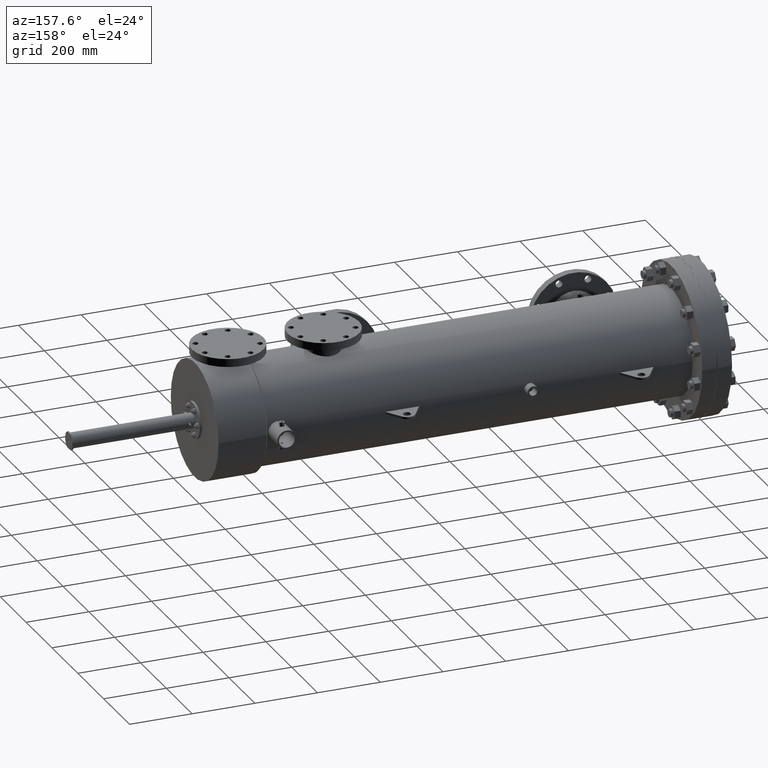
[diagram: clean part render]
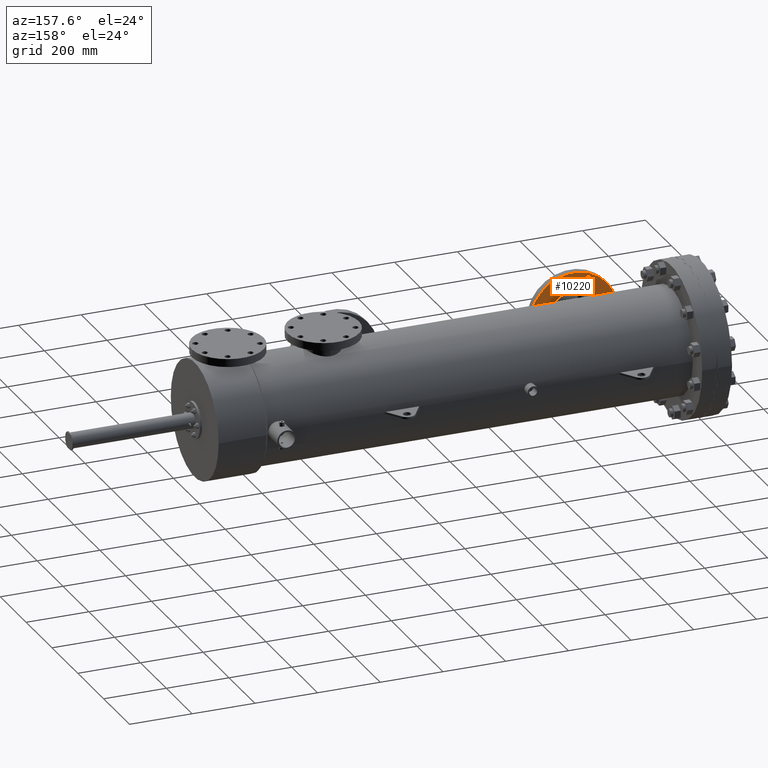
[diagram: same view with one face highlighted and labeled with its STEP entity id]
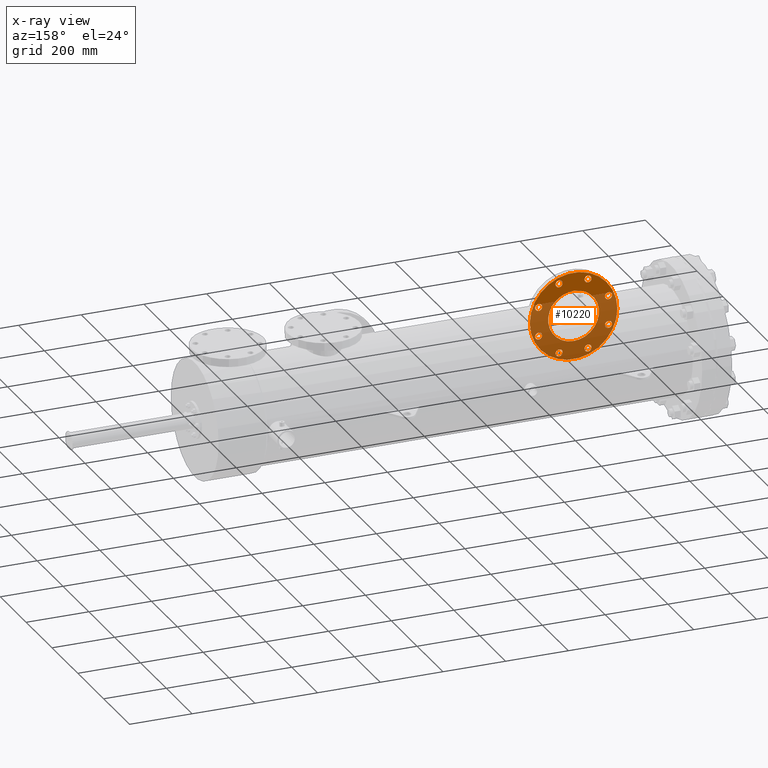
[diagram: x-ray of the same camera — body ghosted, the highlighted face saturated]
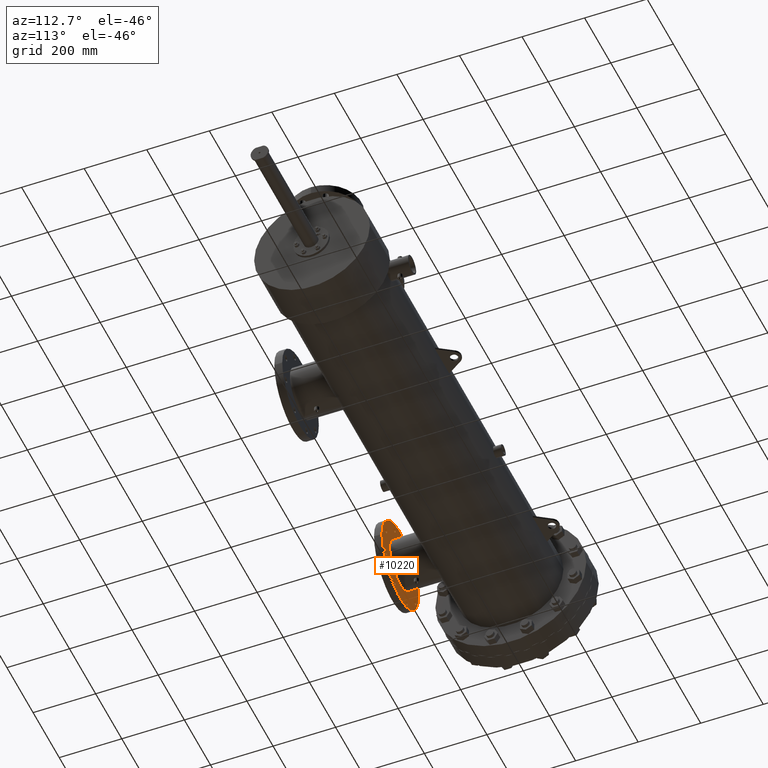
[diagram: same view with one face highlighted and labeled with its STEP entity id]
A machine part, auxiliary view. The second image highlights one B-rep face of the part: STEP entity #10220.
The next image is the same camera in x-ray: the body ghosted, the highlighted face saturated — about 66% of this face is hidden behind the body in this view.
A second angle (auxiliary view) of the same face is appended — the face is thin or edge-on in the first view.
In plain terms, the highlighted planar face has unit normal (0, -1, 0).
Its self-contained STEP definition (entity closure, byte-faithful):
#33 = EDGE_CURVE ( 'NONE', #14487, #1990, #2728, .T. ) ;
#106 = VERTEX_POINT ( 'NONE', #21981 ) ;
#226 = EDGE_CURVE ( 'NONE', #7714, #16592, #11647, .T. ) ;
#293 = DIRECTION ( 'NONE',  ( 1.000000000000000000, 0.0000000000000000000, 0.0000000000000000000 ) ) ;
#329 = VERTEX_POINT ( 'NONE', #22434 ) ;
#343 = CIRCLE ( 'NONE', #2646, 0.4400000000000007794 ) ;
#422 = CARTESIAN_POINT ( 'NONE',  ( 9.353764628995829611, -10.62999999999999901, 4.388427779428623055 ) ) ;
#454 = CIRCLE ( 'NONE', #13654, 0.4400000000000007794 ) ;
#458 = DIRECTION ( 'NONE',  ( -0.0000000000000000000, 1.000000000000000000, -0.0000000000000000000 ) ) ;
#621 = DIRECTION ( 'NONE',  ( 0.0000000000000000000, 0.0000000000000000000, 1.000000000000000000 ) ) ;
#646 = CARTESIAN_POINT ( 'NONE',  ( 17.11151093272998125, -10.62999999999999723, 6.735557395310442023E-16 ) ) ;
#653 = EDGE_LOOP ( 'NONE', ( #12948, #12120 ) ) ;
#667 = FACE_BOUND ( 'NONE', #3183, .T. ) ;
#722 = EDGE_CURVE ( 'NONE', #4144, #19032, #19758, .T. ) ;
#919 = AXIS2_PLACEMENT_3D ( 'NONE', #7490, #2372, #14676 ) ;
#1275 = EDGE_CURVE ( 'NONE', #4423, #9014, #16031, .T. ) ;
#1375 = DIRECTION ( 'NONE',  ( 2.044436861273687145E-16, -1.000000000000000000, 0.0000000000000000000 ) ) ;
#1385 = CARTESIAN_POINT ( 'NONE',  ( 13.86925723646413111, -10.62999999999999901, -4.388427779428622166 ) ) ;
#1450 = CIRCLE ( 'NONE', #18663, 0.4400000000000007794 ) ;
#1752 = ORIENTED_EDGE ( 'NONE', *, *, #226, .F. ) ;
#1797 = ORIENTED_EDGE ( 'NONE', *, *, #22380, .T. ) ;
#1801 = DIRECTION ( 'NONE',  ( 1.000000000000000000, 2.044436861273686899E-16, 0.0000000000000000000 ) ) ;
#1891 = EDGE_LOOP ( 'NONE', ( #12423, #14585 ) ) ;
#1893 = AXIS2_PLACEMENT_3D ( 'NONE', #14066, #1375, #21120 ) ;
#1906 = ORIENTED_EDGE ( 'NONE', *, *, #1275, .F. ) ;
#1958 = DIRECTION ( 'NONE',  ( 1.000000000000000000, 0.0000000000000000000, 0.0000000000000000000 ) ) ;
#1986 = DIRECTION ( 'NONE',  ( 1.000000000000000000, 0.0000000000000000000, 0.0000000000000000000 ) ) ;
#1990 = VERTEX_POINT ( 'NONE', #16311 ) ;
#2017 = CARTESIAN_POINT ( 'NONE',  ( 7.663083153301379014, -10.62999999999999901, 1.817746303734203872 ) ) ;
#2103 = CARTESIAN_POINT ( 'NONE',  ( 15.99993871215857943, -10.62999999999999901, -1.817746303734206093 ) ) ;
#2162 = ORIENTED_EDGE ( 'NONE', *, *, #20781, .T. ) ;
#2365 = EDGE_CURVE ( 'NONE', #329, #10608, #3474, .T. ) ;
#2372 = DIRECTION ( 'NONE',  ( 2.044436861273687145E-16, -1.000000000000000000, 0.0000000000000000000 ) ) ;
#2646 = AXIS2_PLACEMENT_3D ( 'NONE', #6552, #8338, #10131 ) ;
#2728 = CIRCLE ( 'NONE', #16000, 0.4400000000000007794 ) ;
#2783 = AXIS2_PLACEMENT_3D ( 'NONE', #2103, #9169, #1958 ) ;
#2877 = CARTESIAN_POINT ( 'NONE',  ( 9.793764628995777599, -10.62999999999999901, -4.388427779428599074 ) ) ;
#2902 = AXIS2_PLACEMENT_3D ( 'NONE', #9490, #458, #621 ) ;
#2935 = EDGE_LOOP ( 'NONE', ( #1752, #3768 ) ) ;
#3086 = EDGE_CURVE ( 'NONE', #106, #11661, #343, .T. ) ;
#3183 = EDGE_LOOP ( 'NONE', ( #1906, #7721 ) ) ;
#3257 = CIRCLE ( 'NONE', #14486, 0.4400000000000007794 ) ;
#3472 = FACE_BOUND ( 'NONE', #7607, .T. ) ;
#3474 = CIRCLE ( 'NONE', #2783, 0.4400000000000007794 ) ;
#3682 = EDGE_CURVE ( 'NONE', #18306, #21720, #7289, .T. ) ;
#3768 = ORIENTED_EDGE ( 'NONE', *, *, #7464, .F. ) ;
#3808 = CARTESIAN_POINT ( 'NONE',  ( 10.23376462899583217, -10.62999999999999901, 4.388427779428623055 ) ) ;
#3879 = CARTESIAN_POINT ( 'NONE',  ( 13.42925723646412983, -10.62999999999999901, -4.388427779428622166 ) ) ;
#4144 = VERTEX_POINT ( 'NONE', #16635 ) ;
#4171 = EDGE_LOOP ( 'NONE', ( #10896, #13009 ) ) ;
#4423 = VERTEX_POINT ( 'NONE', #21511 ) ;
#4649 = DIRECTION ( 'NONE',  ( 1.000000000000000000, 3.973597081693472607E-16, 0.0000000000000000000 ) ) ;
#4662 = EDGE_LOOP ( 'NONE', ( #5577, #17060 ) ) ;
#4845 = EDGE_CURVE ( 'NONE', #21720, #18306, #15913, .T. ) ;
#5125 = CIRCLE ( 'NONE', #919, 0.4399999999999996692 ) ;
#5174 = DIRECTION ( 'NONE',  ( 1.000000000000000000, 0.0000000000000000000, 0.0000000000000000000 ) ) ;
#5207 = DIRECTION ( 'NONE',  ( 1.000000000000000000, 3.973597081693472607E-16, 0.0000000000000000000 ) ) ;
#5320 = CARTESIAN_POINT ( 'NONE',  ( 12.98925723646418362, -10.62999999999999901, 4.388427779428599074 ) ) ;
#5399 = FACE_BOUND ( 'NONE', #4662, .T. ) ;
#5403 = CIRCLE ( 'NONE', #19891, 0.4399999999999996692 ) ;
#5427 = DIRECTION ( 'NONE',  ( 2.044436861273687145E-16, -1.000000000000000000, 0.0000000000000000000 ) ) ;
#5508 = DIRECTION ( 'NONE',  ( 0.0000000000000000000, 0.0000000000000000000, 1.000000000000000000 ) ) ;
#5577 = ORIENTED_EDGE ( 'NONE', *, *, #19627, .T. ) ;
#5800 = CARTESIAN_POINT ( 'NONE',  ( 13.42925723646418490, -10.62999999999999901, 4.388427779428599074 ) ) ;
#5881 = EDGE_CURVE ( 'NONE', #7110, #15259, #12262, .T. ) ;
#6039 = ORIENTED_EDGE ( 'NONE', *, *, #16487, .T. ) ;
#6526 = FACE_BOUND ( 'NONE', #8024, .T. ) ;
#6552 = CARTESIAN_POINT ( 'NONE',  ( 15.99993871215860075, -10.62999999999999901, 1.817746303734149249 ) ) ;
#6608 = CARTESIAN_POINT ( 'NONE',  ( 9.353764628995774544, -10.62999999999999901, -4.388427779428599074 ) ) ;
#6805 = DIRECTION ( 'NONE',  ( 2.044436861273687145E-16, -1.000000000000000000, 0.0000000000000000000 ) ) ;
#7035 = DIRECTION ( 'NONE',  ( 2.044436861273687145E-16, -1.000000000000000000, 0.0000000000000000000 ) ) ;
#7110 = VERTEX_POINT ( 'NONE', #12694 ) ;
#7289 = CIRCLE ( 'NONE', #1893, 0.4400000000000007794 ) ;
#7464 = EDGE_CURVE ( 'NONE', #16592, #7714, #12187, .T. ) ;
#7490 = CARTESIAN_POINT ( 'NONE',  ( 7.223083153301358195, -10.62999999999999901, -1.817746303734150359 ) ) ;
#7505 = AXIS2_PLACEMENT_3D ( 'NONE', #2877, #10037, #15327 ) ;
#7607 = EDGE_LOOP ( 'NONE', ( #10445, #11019 ) ) ;
#7714 = VERTEX_POINT ( 'NONE', #14256 ) ;
#7721 = ORIENTED_EDGE ( 'NONE', *, *, #10414, .F. ) ;
#7766 = CARTESIAN_POINT ( 'NONE',  ( 15.55993871215860125, -10.62999999999999901, 1.817746303734149249 ) ) ;
#8024 = EDGE_LOOP ( 'NONE', ( #14376, #18188 ) ) ;
#8189 = FACE_BOUND ( 'NONE', #10061, .T. ) ;
#8312 = EDGE_CURVE ( 'NONE', #10585, #10582, #19498, .T. ) ;
#8338 = DIRECTION ( 'NONE',  ( 2.044436861273687145E-16, -1.000000000000000000, 0.0000000000000000000 ) ) ;
#8515 = DIRECTION ( 'NONE',  ( 1.000000000000000000, 0.0000000000000000000, 0.0000000000000000000 ) ) ;
#8587 = CARTESIAN_POINT ( 'NONE',  ( 9.793764628995830890, -10.62999999999999901, 4.388427779428623055 ) ) ;
#8646 = CARTESIAN_POINT ( 'NONE',  ( 11.61151093272998125, -10.63000000000000078, -3.196850393700789272 ) ) ;
#8693 = DIRECTION ( 'NONE',  ( 2.044436861273687145E-16, -1.000000000000000000, 0.0000000000000000000 ) ) ;
#8994 = CARTESIAN_POINT ( 'NONE',  ( 15.99993871215860075, -10.62999999999999901, 1.817746303734149249 ) ) ;
#8995 = CARTESIAN_POINT ( 'NONE',  ( 11.61151093272998125, -10.63000000000000078, 0.0000000000000000000 ) ) ;
#9014 = VERTEX_POINT ( 'NONE', #8646 ) ;
#9169 = DIRECTION ( 'NONE',  ( 2.044436861273687145E-16, -1.000000000000000000, 0.0000000000000000000 ) ) ;
#9358 = DIRECTION ( 'NONE',  ( 1.000000000000000000, 0.0000000000000000000, 0.0000000000000000000 ) ) ;
#9490 = CARTESIAN_POINT ( 'NONE',  ( 11.61151093272998125, -10.63000000000000078, 0.0000000000000000000 ) ) ;
#9569 = FACE_BOUND ( 'NONE', #4171, .T. ) ;
#10037 = DIRECTION ( 'NONE',  ( 2.044436861273687145E-16, -1.000000000000000000, 0.0000000000000000000 ) ) ;
#10061 = EDGE_LOOP ( 'NONE', ( #2162, #17125 ) ) ;
#10131 = DIRECTION ( 'NONE',  ( 1.000000000000000000, 0.0000000000000000000, 0.0000000000000000000 ) ) ;
#10220 = ADVANCED_FACE ( 'NONE', ( #667, #11539, #9569, #16579, #11826, #6526, #5399, #8189, #21882, #3472 ), #21467, .F. ) ;
#10344 = CARTESIAN_POINT ( 'NONE',  ( 11.61151093272998125, -10.62999999999999901, 0.0000000000000000000 ) ) ;
#10414 = EDGE_CURVE ( 'NONE', #9014, #4423, #12349, .T. ) ;
#10445 = ORIENTED_EDGE ( 'NONE', *, *, #8312, .T. ) ;
#10516 = AXIS2_PLACEMENT_3D ( 'NONE', #8995, #21428, #5508 ) ;
#10537 = DIRECTION ( 'NONE',  ( 2.044436861273687145E-16, -1.000000000000000000, 0.0000000000000000000 ) ) ;
#10582 = VERTEX_POINT ( 'NONE', #2017 ) ;
#10585 = VERTEX_POINT ( 'NONE', #14782 ) ;
#10608 = VERTEX_POINT ( 'NONE', #16423 ) ;
#10754 = DIRECTION ( 'NONE',  ( 2.044436861273687145E-16, -1.000000000000000000, 0.0000000000000000000 ) ) ;
#10821 = AXIS2_PLACEMENT_3D ( 'NONE', #12393, #14200, #1801 ) ;
#10896 = ORIENTED_EDGE ( 'NONE', *, *, #4845, .T. ) ;
#10978 = DIRECTION ( 'NONE',  ( 2.044436861273687145E-16, -1.000000000000000000, 0.0000000000000000000 ) ) ;
#11019 = ORIENTED_EDGE ( 'NONE', *, *, #16865, .T. ) ;
#11051 = CIRCLE ( 'NONE', #22651, 0.4400000000000007794 ) ;
#11539 = FACE_OUTER_BOUND ( 'NONE', #2935, .T. ) ;
#11647 = CIRCLE ( 'NONE', #23069, 5.500000000000001776 ) ;
#11661 = VERTEX_POINT ( 'NONE', #7766 ) ;
#11819 = CARTESIAN_POINT ( 'NONE',  ( 11.61151093272998125, -10.62999999999999901, 0.0000000000000000000 ) ) ;
#11826 = FACE_BOUND ( 'NONE', #1891, .T. ) ;
#12120 = ORIENTED_EDGE ( 'NONE', *, *, #5881, .T. ) ;
#12187 = CIRCLE ( 'NONE', #21984, 5.500000000000001776 ) ;
#12262 = CIRCLE ( 'NONE', #15783, 0.4400000000000007794 ) ;
#12272 = CARTESIAN_POINT ( 'NONE',  ( 7.223083153301358195, -10.62999999999999901, -1.817746303734150359 ) ) ;
#12349 = CIRCLE ( 'NONE', #2902, 3.196850393700789272 ) ;
#12393 = CARTESIAN_POINT ( 'NONE',  ( 11.61151093272998125, -10.62999999999999901, 0.0000000000000000000 ) ) ;
#12423 = ORIENTED_EDGE ( 'NONE', *, *, #19233, .T. ) ;
#12686 = CARTESIAN_POINT ( 'NONE',  ( 6.783083153301358692, -10.62999999999999901, -1.817746303734150359 ) ) ;
#12687 = CARTESIAN_POINT ( 'NONE',  ( 7.223083153301379511, -10.62999999999999901, 1.817746303734203872 ) ) ;
#12694 = CARTESIAN_POINT ( 'NONE',  ( 13.86925723646418618, -10.62999999999999901, 4.388427779428599074 ) ) ;
#12795 = CARTESIAN_POINT ( 'NONE',  ( 13.42925723646418490, -10.62999999999999901, 4.388427779428599074 ) ) ;
#12948 = ORIENTED_EDGE ( 'NONE', *, *, #17747, .T. ) ;
#13009 = ORIENTED_EDGE ( 'NONE', *, *, #3682, .T. ) ;
#13092 = VERTEX_POINT ( 'NONE', #20525 ) ;
#13448 = DIRECTION ( 'NONE',  ( 2.044436861273687145E-16, -1.000000000000000000, 0.0000000000000000000 ) ) ;
#13592 = CIRCLE ( 'NONE', #13789, 0.4400000000000007794 ) ;
#13654 = AXIS2_PLACEMENT_3D ( 'NONE', #8994, #5427, #19904 ) ;
#13789 = AXIS2_PLACEMENT_3D ( 'NONE', #12795, #18140, #1986 ) ;
#13906 = CARTESIAN_POINT ( 'NONE',  ( 7.223083153301379511, -10.62999999999999901, 1.817746303734203872 ) ) ;
#14066 = CARTESIAN_POINT ( 'NONE',  ( 9.793764628995830890, -10.62999999999999901, 4.388427779428623055 ) ) ;
#14200 = DIRECTION ( 'NONE',  ( 2.044436861273686899E-16, -1.000000000000000000, 0.0000000000000000000 ) ) ;
#14256 = CARTESIAN_POINT ( 'NONE',  ( 6.111510932729980361, -10.63000000000000078, 0.0000000000000000000 ) ) ;
#14299 = VERTEX_POINT ( 'NONE', #12686 ) ;
#14365 = CARTESIAN_POINT ( 'NONE',  ( 9.793764628995777599, -10.62999999999999901, -4.388427779428599074 ) ) ;
#14376 = ORIENTED_EDGE ( 'NONE', *, *, #2365, .T. ) ;
#14486 = AXIS2_PLACEMENT_3D ( 'NONE', #17774, #8693, #23149 ) ;
#14487 = VERTEX_POINT ( 'NONE', #1385 ) ;
#14585 = ORIENTED_EDGE ( 'NONE', *, *, #3086, .T. ) ;
#14628 = EDGE_CURVE ( 'NONE', #10608, #329, #3257, .T. ) ;
#14676 = DIRECTION ( 'NONE',  ( 1.000000000000000000, 0.0000000000000000000, 0.0000000000000000000 ) ) ;
#14782 = CARTESIAN_POINT ( 'NONE',  ( 6.783083153301379120, -10.62999999999999901, 1.817746303734203872 ) ) ;
#15259 = VERTEX_POINT ( 'NONE', #5320 ) ;
#15327 = DIRECTION ( 'NONE',  ( 1.000000000000000000, 0.0000000000000000000, 0.0000000000000000000 ) ) ;
#15766 = DIRECTION ( 'NONE',  ( 1.000000000000000000, 0.0000000000000000000, 0.0000000000000000000 ) ) ;
#15783 = AXIS2_PLACEMENT_3D ( 'NONE', #5800, #20106, #9358 ) ;
#15913 = CIRCLE ( 'NONE', #17485, 0.4400000000000007794 ) ;
#16000 = AXIS2_PLACEMENT_3D ( 'NONE', #3879, #10978, #17862 ) ;
#16031 = CIRCLE ( 'NONE', #10516, 3.196850393700789272 ) ;
#16311 = CARTESIAN_POINT ( 'NONE',  ( 12.98925723646412855, -10.62999999999999901, -4.388427779428622166 ) ) ;
#16423 = CARTESIAN_POINT ( 'NONE',  ( 16.43993871215857894, -10.62999999999999901, -1.817746303734206093 ) ) ;
#16487 = EDGE_CURVE ( 'NONE', #13092, #14299, #5125, .T. ) ;
#16579 = FACE_BOUND ( 'NONE', #653, .T. ) ;
#16592 = VERTEX_POINT ( 'NONE', #646 ) ;
#16635 = CARTESIAN_POINT ( 'NONE',  ( 10.23376462899577710, -10.62999999999999901, -4.388427779428599074 ) ) ;
#16865 = EDGE_CURVE ( 'NONE', #10582, #10585, #17945, .T. ) ;
#17060 = ORIENTED_EDGE ( 'NONE', *, *, #33, .T. ) ;
#17125 = ORIENTED_EDGE ( 'NONE', *, *, #722, .T. ) ;
#17485 = AXIS2_PLACEMENT_3D ( 'NONE', #8587, #10537, #23032 ) ;
#17747 = EDGE_CURVE ( 'NONE', #15259, #7110, #13592, .T. ) ;
#17774 = CARTESIAN_POINT ( 'NONE',  ( 15.99993871215857943, -10.62999999999999901, -1.817746303734206093 ) ) ;
#17813 = DIRECTION ( 'NONE',  ( 2.044436861273687145E-16, -1.000000000000000000, 0.0000000000000000000 ) ) ;
#17862 = DIRECTION ( 'NONE',  ( 1.000000000000000000, 0.0000000000000000000, 0.0000000000000000000 ) ) ;
#17945 = CIRCLE ( 'NONE', #20832, 0.4399999999999996692 ) ;
#18140 = DIRECTION ( 'NONE',  ( 2.044436861273687145E-16, -1.000000000000000000, 0.0000000000000000000 ) ) ;
#18188 = ORIENTED_EDGE ( 'NONE', *, *, #14628, .T. ) ;
#18306 = VERTEX_POINT ( 'NONE', #3808 ) ;
#18663 = AXIS2_PLACEMENT_3D ( 'NONE', #14365, #17813, #21618 ) ;
#19032 = VERTEX_POINT ( 'NONE', #6608 ) ;
#19233 = EDGE_CURVE ( 'NONE', #11661, #106, #454, .T. ) ;
#19255 = CARTESIAN_POINT ( 'NONE',  ( 13.42925723646412983, -10.62999999999999901, -4.388427779428622166 ) ) ;
#19498 = CIRCLE ( 'NONE', #20671, 0.4399999999999996692 ) ;
#19627 = EDGE_CURVE ( 'NONE', #1990, #14487, #11051, .T. ) ;
#19758 = CIRCLE ( 'NONE', #7505, 0.4400000000000007794 ) ;
#19891 = AXIS2_PLACEMENT_3D ( 'NONE', #12272, #7035, #15766 ) ;
#19904 = DIRECTION ( 'NONE',  ( 1.000000000000000000, 0.0000000000000000000, 0.0000000000000000000 ) ) ;
#19952 = EDGE_LOOP ( 'NONE', ( #1797, #6039 ) ) ;
#20106 = DIRECTION ( 'NONE',  ( 2.044436861273687145E-16, -1.000000000000000000, 0.0000000000000000000 ) ) ;
#20525 = CARTESIAN_POINT ( 'NONE',  ( 7.663083153301358585, -10.62999999999999901, -1.817746303734150359 ) ) ;
#20671 = AXIS2_PLACEMENT_3D ( 'NONE', #13906, #6805, #5174 ) ;
#20781 = EDGE_CURVE ( 'NONE', #19032, #4144, #1450, .T. ) ;
#20832 = AXIS2_PLACEMENT_3D ( 'NONE', #12687, #10754, #293 ) ;
#21120 = DIRECTION ( 'NONE',  ( 1.000000000000000000, 0.0000000000000000000, 0.0000000000000000000 ) ) ;
#21428 = DIRECTION ( 'NONE',  ( -0.0000000000000000000, 1.000000000000000000, -0.0000000000000000000 ) ) ;
#21467 = PLANE ( 'NONE',  #10821 ) ;
#21511 = CARTESIAN_POINT ( 'NONE',  ( 11.61151093272998125, -10.63000000000000078, 3.196850393700789272 ) ) ;
#21618 = DIRECTION ( 'NONE',  ( 1.000000000000000000, 0.0000000000000000000, 0.0000000000000000000 ) ) ;
#21720 = VERTEX_POINT ( 'NONE', #422 ) ;
#21882 = FACE_BOUND ( 'NONE', #19952, .T. ) ;
#21981 = CARTESIAN_POINT ( 'NONE',  ( 16.43993871215860025, -10.62999999999999901, 1.817746303734149249 ) ) ;
#21984 = AXIS2_PLACEMENT_3D ( 'NONE', #10344, #22911, #5207 ) ;
#22380 = EDGE_CURVE ( 'NONE', #14299, #13092, #5403, .T. ) ;
#22434 = CARTESIAN_POINT ( 'NONE',  ( 15.55993871215857816, -10.62999999999999901, -1.817746303734206093 ) ) ;
#22583 = DIRECTION ( 'NONE',  ( 2.044436861273687145E-16, -1.000000000000000000, 0.0000000000000000000 ) ) ;
#22651 = AXIS2_PLACEMENT_3D ( 'NONE', #19255, #22583, #8515 ) ;
#22911 = DIRECTION ( 'NONE',  ( 2.044436861273687145E-16, -1.000000000000000000, 0.0000000000000000000 ) ) ;
#23032 = DIRECTION ( 'NONE',  ( 1.000000000000000000, 0.0000000000000000000, 0.0000000000000000000 ) ) ;
#23069 = AXIS2_PLACEMENT_3D ( 'NONE', #11819, #13448, #4649 ) ;
#23149 = DIRECTION ( 'NONE',  ( 1.000000000000000000, 0.0000000000000000000, 0.0000000000000000000 ) ) ;